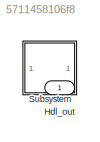
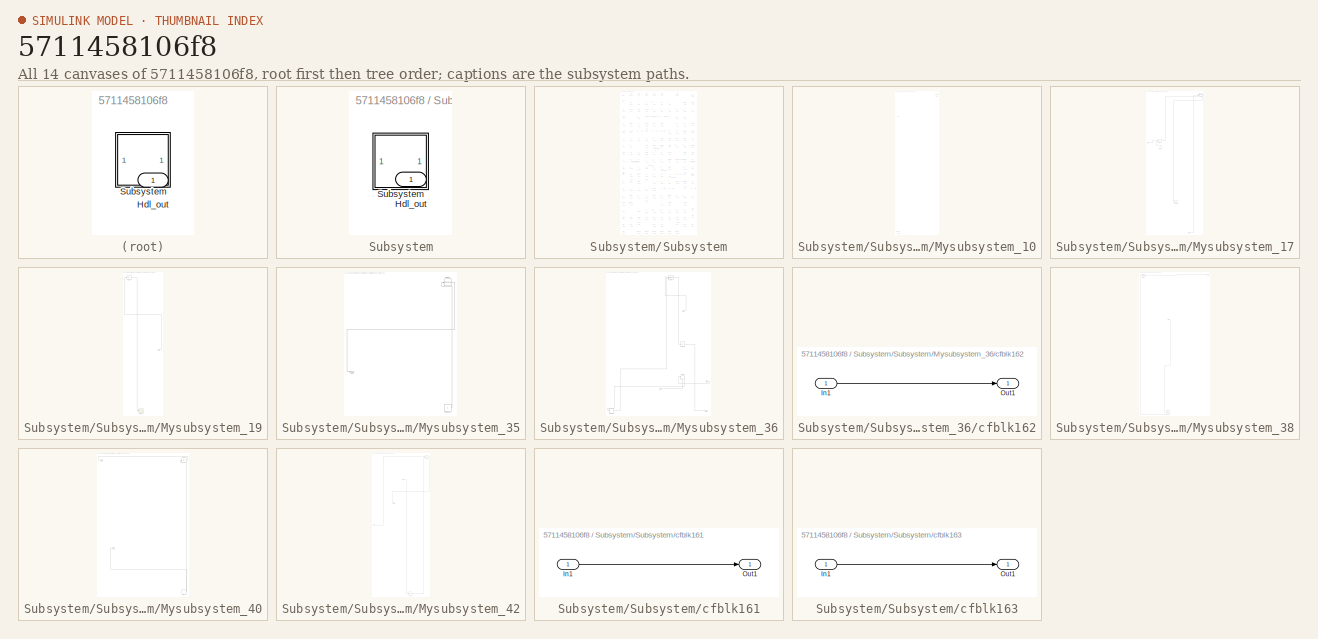
[diagram: thumbnail index - all 14 canvases of the model, root first then tree order]
MODEL slx_5711458106f8
KIND model
CONFIG AbsTol = auto
CONFIG EnableMultiTasking = off
CONFIG FixedStep = auto
CONFIG MaxStep = auto
CONFIG MinStep = auto
CONFIG RelTol = 1e-3
CONFIG SampleTimeConstraint = Unconstrained
CONFIG SolverName = VariableStepAuto
CONFIG StartTime = 0.0
CONFIG StopTime = 10.0
BLOCK [Outport] Hdl_out
  OutDataTypeStr = uint8
BLOCK [SubSystem] Subsystem
BLOCK [Outport] Subsystem/Hdl_out
  OutDataTypeStr = uint8
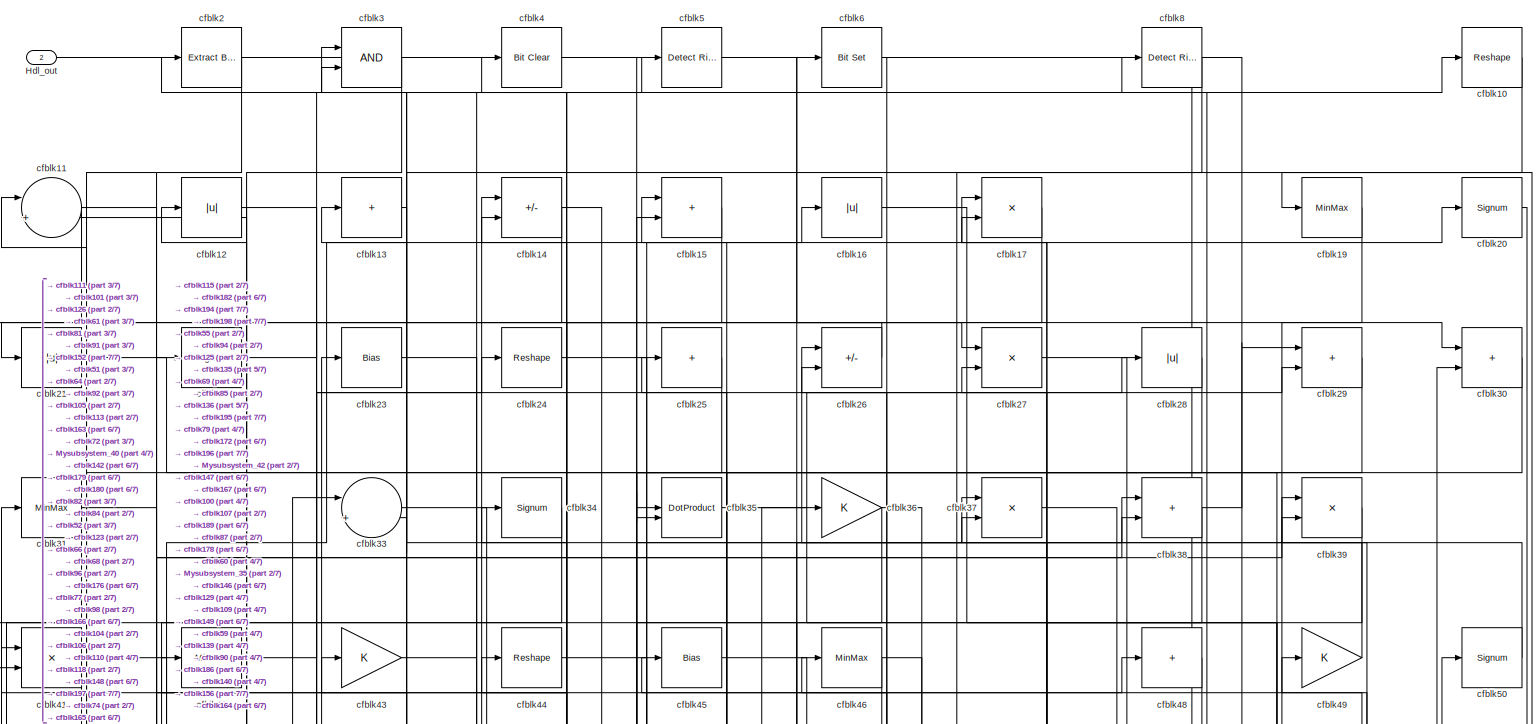
[diagram: Subsystem/Subsystem - part 1/7, full width, top band]
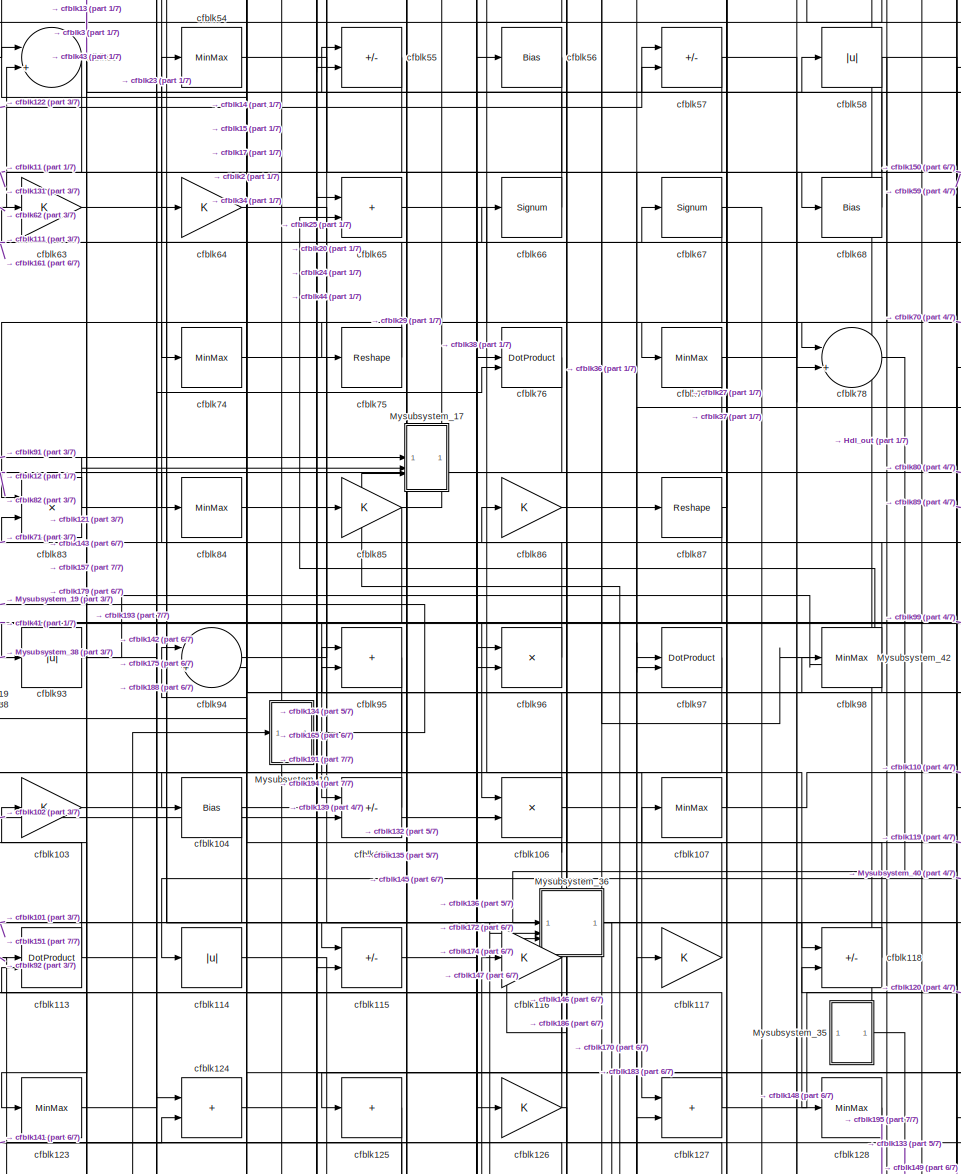
[diagram: Subsystem/Subsystem - part 2/7, central region]
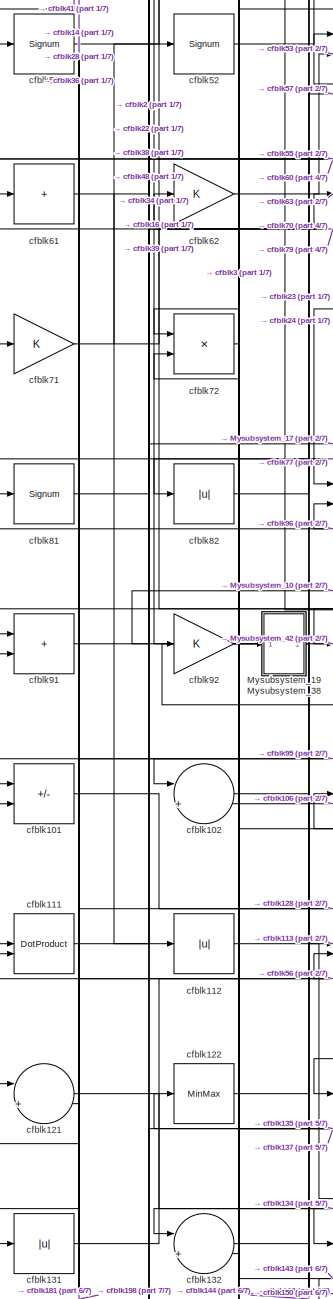
[diagram: Subsystem/Subsystem - part 3/7, middle left region]
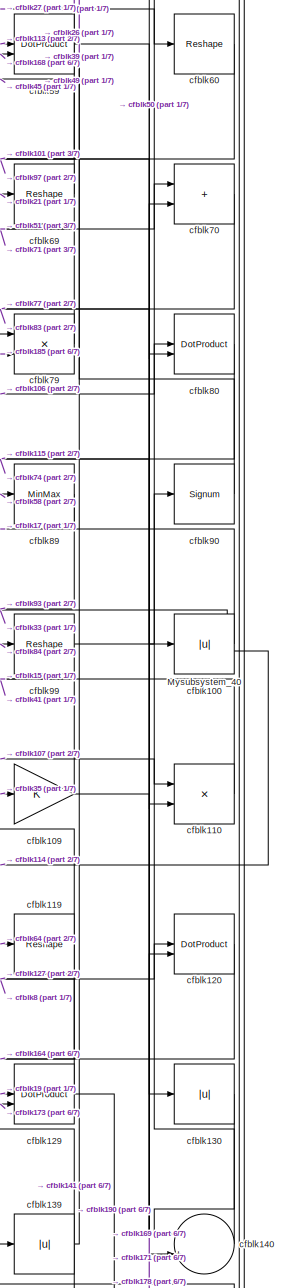
[diagram: Subsystem/Subsystem - part 4/7, middle right region]
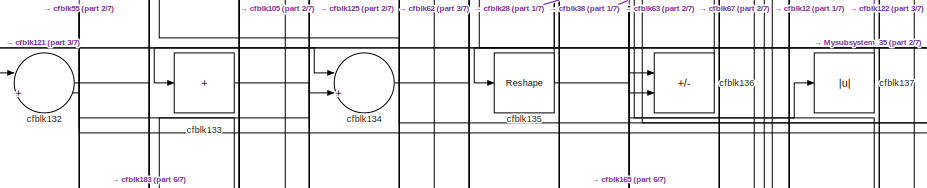
[diagram: Subsystem/Subsystem - part 5/7, bottom center region]
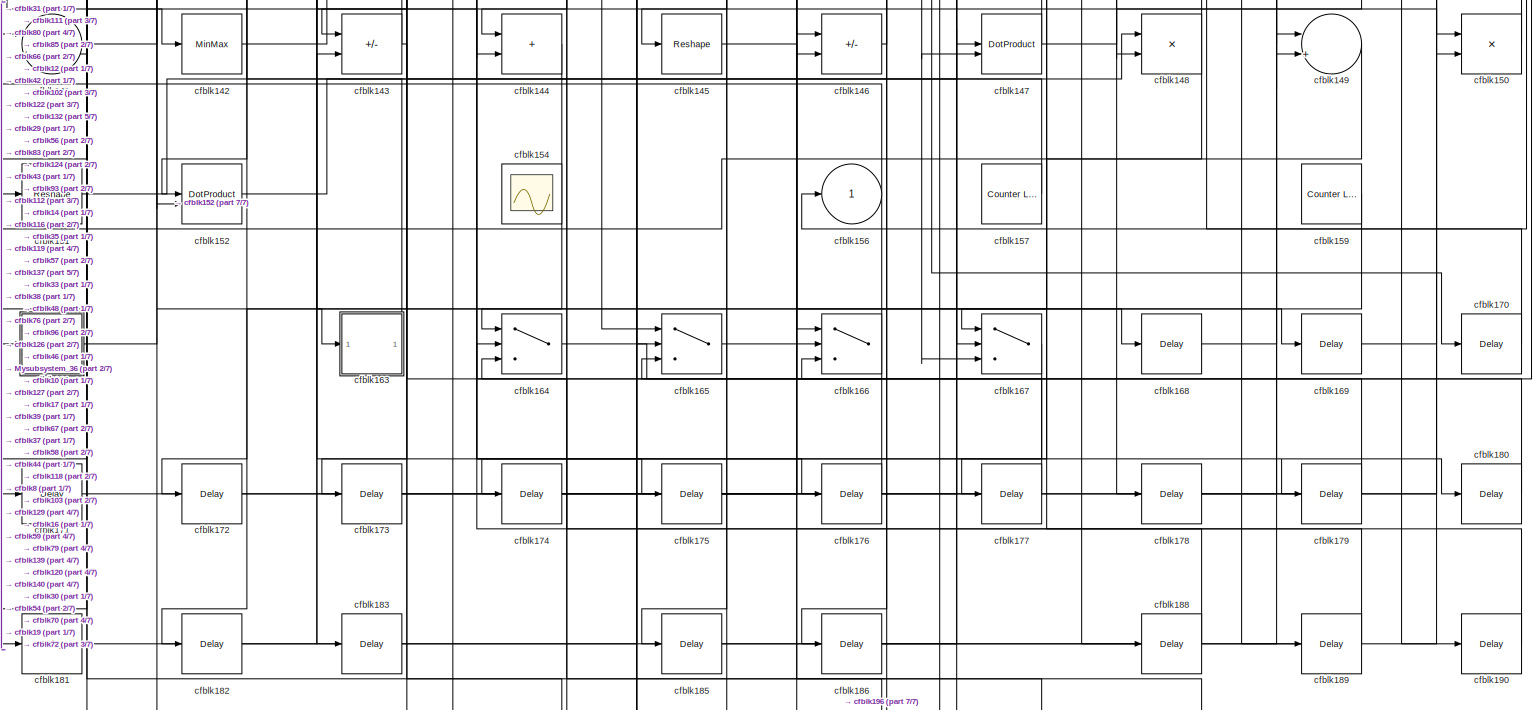
[diagram: Subsystem/Subsystem - part 6/7, full width, bottom band]
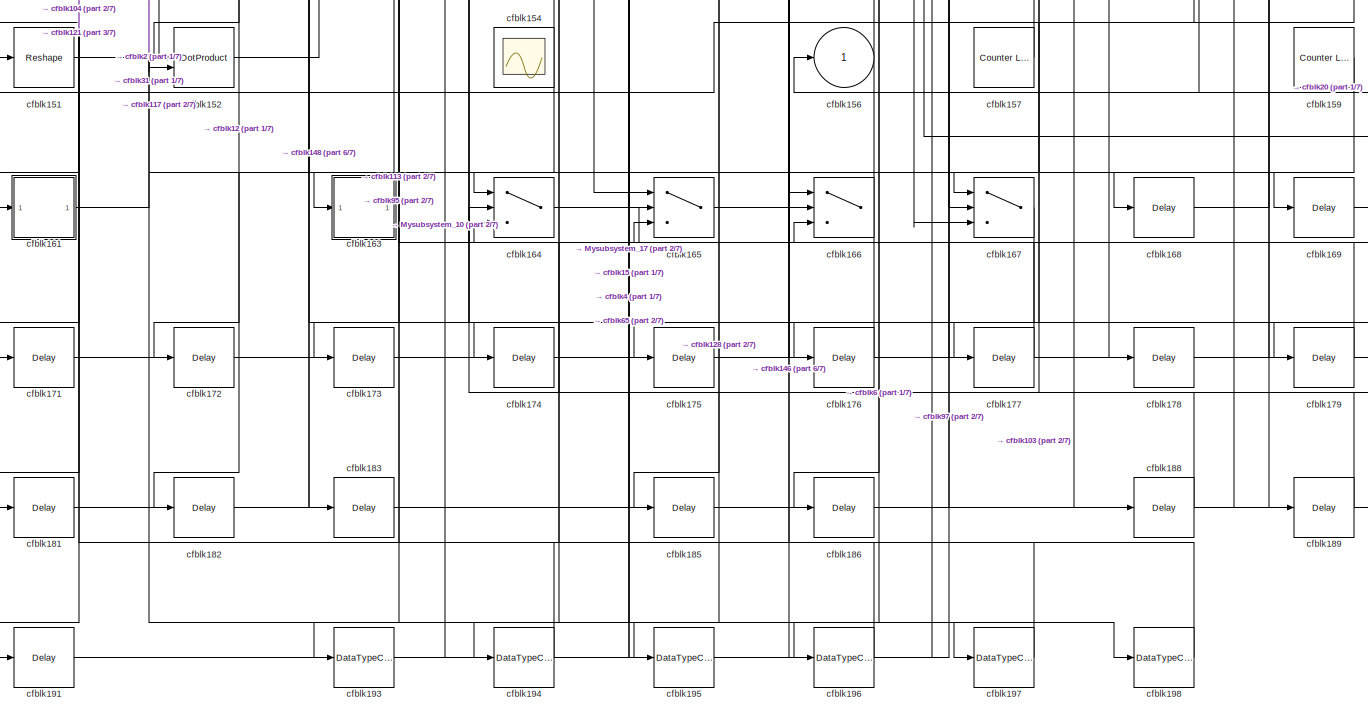
[diagram: Subsystem/Subsystem - part 7/7, full width, bottom band]
BLOCK [SubSystem] Subsystem/Subsystem
BLOCK [Outport] Subsystem/Subsystem/Hdl_out
  OutDataTypeStr = uint8
  Port = 2
BLOCK [SubSystem] Subsystem/Subsystem/Mysubsystem_10
  RTWFcnName = Mysubsystem_10
  RTWFcnNameOpts = User specified
  RTWFileNameOpts = Use function name
  RTWSystemCode = Reusable function
  TreatAsAtomicUnit = on
BLOCK [Outport] Subsystem/Subsystem/Mysubsystem_10/Out1
BLOCK [Inport] Subsystem/Subsystem/Mysubsystem_10/U
BLOCK [DataTypeConversion] Subsystem/Subsystem/Mysubsystem_10/cfblk192
  OutDataTypeStr = uint8
  RndMeth = Floor
  SaturateOnIntegerOverflow = off
BLOCK [Reference] Subsystem/Subsystem/Mysubsystem_10/cfblk7  REF=hdlsllib/Logic and Bit
Operations/Detect Rise
Positive
  SourceBlock = hdlsllib/Logic and Bit\nOperations/Detect Rise\nPositive
  SourceType = Detect Rise Positive
BLOCK [SubSystem] Subsystem/Subsystem/Mysubsystem_17
  RTWFcnName = Mysubsystem_17
  RTWFcnNameOpts = User specified
  RTWFileNameOpts = Use function name
  RTWSystemCode = Reusable function
  TreatAsAtomicUnit = on
BLOCK [Inport] Subsystem/Subsystem/Mysubsystem_17/In1
BLOCK [Inport] Subsystem/Subsystem/Mysubsystem_17/In2
  Port = 2
BLOCK [Inport] Subsystem/Subsystem/Mysubsystem_17/In3
  Port = 3
BLOCK [Display] Subsystem/Subsystem/Mysubsystem_17/cfblk155
  Decimation = 1
BLOCK [DotProduct] Subsystem/Subsystem/Mysubsystem_17/cfblk18
  OutDataTypeStr = Inherit: Inherit via internal rule
BLOCK [Sum] Subsystem/Subsystem/Mysubsystem_17/cfblk73
  IconShape = rectangular
BLOCK [SubSystem] Subsystem/Subsystem/Mysubsystem_19
  RTWFcnName = Mysubsystem_19
  RTWFcnNameOpts = User specified
  RTWFileNameOpts = Use function name
  RTWSystemCode = Reusable function
  TreatAsAtomicUnit = on
BLOCK [Inport] Subsystem/Subsystem/Mysubsystem_19/In1
BLOCK [Scope] Subsystem/Subsystem/Mysubsystem_19/cfblk153
  Floating = off
  NumInputPorts = 1
  ScopeSpecificationString = Simulink.scopes.TimeScopeBlockCfg('CurrentConfiguration', extmgr.ConfigurationSet(extmgr.Configuration('Core','General UI',true),extmgr.Configuration('Core','Source UI',true),extmgr.Configuration('Sources','WiredSimulink',true,'DataLoggingVariableName','ScopeData2','DataLoggingSaveFormat','Array','DataLoggingLimitDataPoints',true,'DataLoggingDecimation','1'),extmgr.Configuration('Visuals','Time Do...<+868ch>
BLOCK [Abs] Subsystem/Subsystem/Mysubsystem_19/cfblk32
  SaturateOnIntegerOverflow = off
BLOCK [SubSystem] Subsystem/Subsystem/Mysubsystem_35
  RTWFcnName = Mysubsystem_35
  RTWFcnNameOpts = User specified
  RTWFileNameOpts = Use function name
  RTWSystemCode = Reusable function
  TreatAsAtomicUnit = on
BLOCK [Outport] Subsystem/Subsystem/Mysubsystem_35/Out1
BLOCK [Constant] Subsystem/Subsystem/Mysubsystem_35/cfblk158
  SampleTime = -1
BLOCK [Reshape] Subsystem/Subsystem/Mysubsystem_35/cfblk88
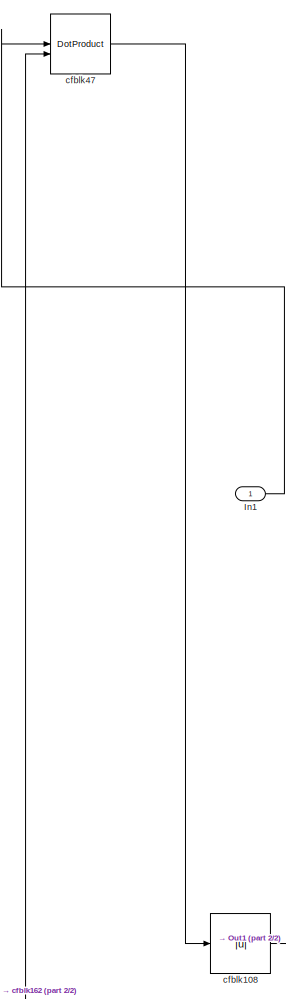
[diagram: Subsystem/Subsystem/Mysubsystem_36 - part 1/2, top center region]
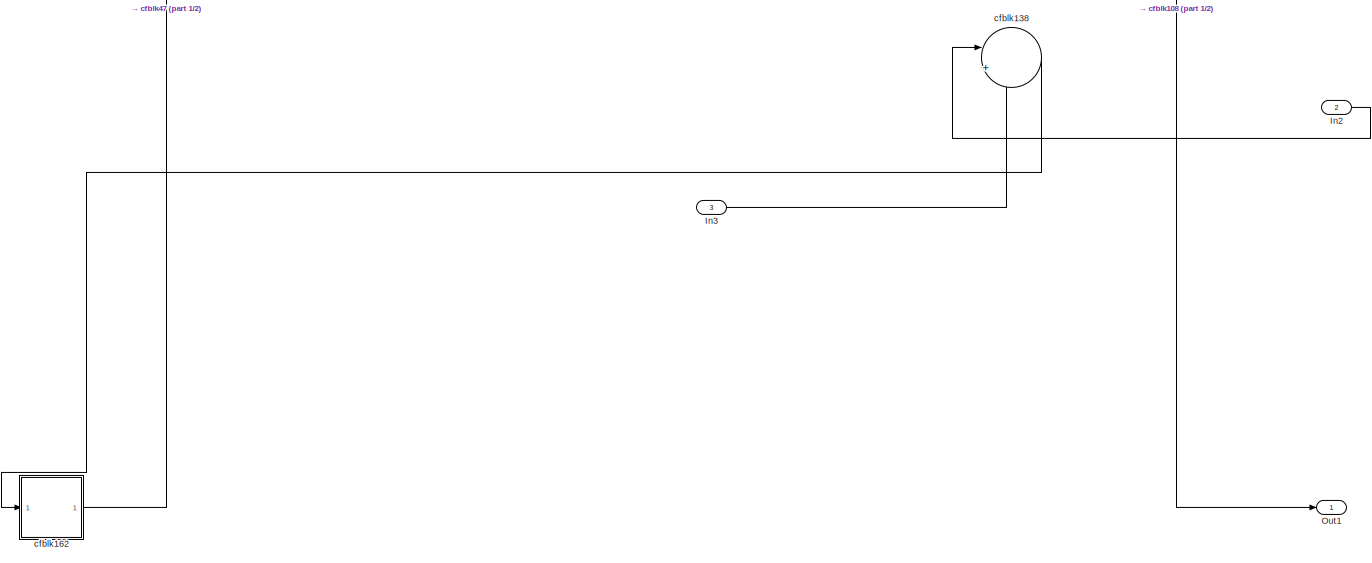
[diagram: Subsystem/Subsystem/Mysubsystem_36 - part 2/2, full width, bottom band]
BLOCK [SubSystem] Subsystem/Subsystem/Mysubsystem_36
  RTWFcnName = Mysubsystem_36
  RTWFcnNameOpts = User specified
  RTWFileNameOpts = Use function name
  RTWSystemCode = Reusable function
  TreatAsAtomicUnit = on
BLOCK [Inport] Subsystem/Subsystem/Mysubsystem_36/In1
BLOCK [Inport] Subsystem/Subsystem/Mysubsystem_36/In2
  Port = 2
BLOCK [Inport] Subsystem/Subsystem/Mysubsystem_36/In3
  Port = 3
BLOCK [Outport] Subsystem/Subsystem/Mysubsystem_36/Out1
BLOCK [Abs] Subsystem/Subsystem/Mysubsystem_36/cfblk108
  SaturateOnIntegerOverflow = off
BLOCK [Sum] Subsystem/Subsystem/Mysubsystem_36/cfblk138
  Inputs = |++
BLOCK [SubSystem] Subsystem/Subsystem/Mysubsystem_36/cfblk162
  LibrarySourceBlock = hdlsllib/Ports &\nSubsystems/Subsystem
BLOCK [Inport] Subsystem/Subsystem/Mysubsystem_36/cfblk162/In1
BLOCK [Outport] Subsystem/Subsystem/Mysubsystem_36/cfblk162/Out1
BLOCK [DotProduct] Subsystem/Subsystem/Mysubsystem_36/cfblk47
  OutDataTypeStr = Inherit: Inherit via internal rule
BLOCK [SubSystem] Subsystem/Subsystem/Mysubsystem_38
  RTWFcnName = Mysubsystem_38
  RTWFcnNameOpts = User specified
  RTWFileNameOpts = Use function name
  RTWSystemCode = Reusable function
  TreatAsAtomicUnit = on
BLOCK [Inport] Subsystem/Subsystem/Mysubsystem_38/In1
BLOCK [Outport] Subsystem/Subsystem/Mysubsystem_38/Y
BLOCK [Reference] Subsystem/Subsystem/Mysubsystem_38/cfblk1  REF=simulink/Logic and Bit
Operations/Detect
Increase
  LibrarySourceBlock = hdlsllib/Logic and Bit\nOperations/Detect\nIncrease
  SourceBlock = simulink/Logic and Bit\nOperations/Detect\nIncrease
  SourceType = Detect Increase
BLOCK [Delay] Subsystem/Subsystem/Mysubsystem_38/cfblk184
  InputPortMap = u0
  SampleTime = 1
BLOCK [SubSystem] Subsystem/Subsystem/Mysubsystem_40
  RTWFcnName = Mysubsystem_40
  RTWFcnNameOpts = User specified
  RTWFileNameOpts = Use function name
  RTWSystemCode = Reusable function
  TreatAsAtomicUnit = on
BLOCK [Outport] Subsystem/Subsystem/Mysubsystem_40/Out1
BLOCK [Outport] Subsystem/Subsystem/Mysubsystem_40/Out2
  Port = 2
BLOCK [Constant] Subsystem/Subsystem/Mysubsystem_40/cfblk160
  SampleTime = -1
BLOCK [Abs] Subsystem/Subsystem/Mysubsystem_40/cfblk40
  SaturateOnIntegerOverflow = off
BLOCK [SubSystem] Subsystem/Subsystem/Mysubsystem_42
  RTWFcnName = Mysubsystem_42
  RTWFcnNameOpts = User specified
  RTWFileNameOpts = Use function name
  RTWSystemCode = Reusable function
  TreatAsAtomicUnit = on
BLOCK [Inport] Subsystem/Subsystem/Mysubsystem_42/In1
BLOCK [Inport] Subsystem/Subsystem/Mysubsystem_42/In2
  Port = 2
BLOCK [Outport] Subsystem/Subsystem/Mysubsystem_42/Out1
BLOCK [Delay] Subsystem/Subsystem/Mysubsystem_42/cfblk187
  InputPortMap = u0
  SampleTime = 1
BLOCK [Product] Subsystem/Subsystem/Mysubsystem_42/cfblk9
  Inputs = */
  RndMeth = Zero
  SaturateOnIntegerOverflow = on
BLOCK [Reshape] Subsystem/Subsystem/cfblk10
BLOCK [Abs] Subsystem/Subsystem/cfblk100
  OutDataTypeStr = uint8
  SaturateOnIntegerOverflow = off
BLOCK [Sum] Subsystem/Subsystem/cfblk101
  IconShape = rectangular
  Inputs = +-
  OutDataTypeStr = uint8
BLOCK [Sum] Subsystem/Subsystem/cfblk102
  Inputs = |++
  OutDataTypeStr = uint8
BLOCK [Gain] Subsystem/Subsystem/cfblk103
  OutDataTypeStr = uint8
BLOCK [Bias] Subsystem/Subsystem/cfblk104
  Bias = 0.0
  SaturateOnIntegerOverflow = off
BLOCK [Sum] Subsystem/Subsystem/cfblk105
  IconShape = rectangular
  Inputs = +-
  OutDataTypeStr = uint8
BLOCK [Product] Subsystem/Subsystem/cfblk106
  Inputs = */
  OutDataTypeStr = uint8
  RndMeth = Zero
  SaturateOnIntegerOverflow = on
BLOCK [MinMax] Subsystem/Subsystem/cfblk107
  OutDataTypeStr = uint8
BLOCK [Gain] Subsystem/Subsystem/cfblk109
  OutDataTypeStr = uint8
BLOCK [Sum] Subsystem/Subsystem/cfblk11
  Inputs = |++
  OutDataTypeStr = uint8
BLOCK [Product] Subsystem/Subsystem/cfblk110
  Inputs = */
  OutDataTypeStr = uint8
  RndMeth = Zero
  SaturateOnIntegerOverflow = on
BLOCK [DotProduct] Subsystem/Subsystem/cfblk111
  OutDataTypeStr = uint8
BLOCK [Abs] Subsystem/Subsystem/cfblk112
  OutDataTypeStr = uint8
  SaturateOnIntegerOverflow = off
BLOCK [DotProduct] Subsystem/Subsystem/cfblk113
  OutDataTypeStr = uint8
BLOCK [Abs] Subsystem/Subsystem/cfblk114
  OutDataTypeStr = uint8
  SaturateOnIntegerOverflow = off
BLOCK [Sum] Subsystem/Subsystem/cfblk115
  IconShape = rectangular
  Inputs = +-
  OutDataTypeStr = uint8
BLOCK [Gain] Subsystem/Subsystem/cfblk116
  OutDataTypeStr = uint8
BLOCK [Gain] Subsystem/Subsystem/cfblk117
  OutDataTypeStr = uint8
BLOCK [Sum] Subsystem/Subsystem/cfblk118
  IconShape = rectangular
  Inputs = +-
  OutDataTypeStr = uint8
BLOCK [Reshape] Subsystem/Subsystem/cfblk119
BLOCK [Abs] Subsystem/Subsystem/cfblk12
  OutDataTypeStr = uint8
  SaturateOnIntegerOverflow = off
BLOCK [DotProduct] Subsystem/Subsystem/cfblk120
  OutDataTypeStr = uint8
BLOCK [Sum] Subsystem/Subsystem/cfblk121
  Inputs = |++
  OutDataTypeStr = uint8
BLOCK [MinMax] Subsystem/Subsystem/cfblk122
  OutDataTypeStr = uint8
BLOCK [MinMax] Subsystem/Subsystem/cfblk123
  OutDataTypeStr = uint8
BLOCK [Sum] Subsystem/Subsystem/cfblk124
  IconShape = rectangular
  OutDataTypeStr = uint8
BLOCK [Sum] Subsystem/Subsystem/cfblk125
  IconShape = rectangular
  Inputs = +
  OutDataTypeStr = uint8
BLOCK [Gain] Subsystem/Subsystem/cfblk126
  OutDataTypeStr = uint8
BLOCK [Sum] Subsystem/Subsystem/cfblk127
  IconShape = rectangular
  OutDataTypeStr = uint8
BLOCK [MinMax] Subsystem/Subsystem/cfblk128
  OutDataTypeStr = uint8
BLOCK [DotProduct] Subsystem/Subsystem/cfblk129
  OutDataTypeStr = uint8
BLOCK [Sum] Subsystem/Subsystem/cfblk13
  IconShape = rectangular
  Inputs = +
  OutDataTypeStr = uint8
BLOCK [Abs] Subsystem/Subsystem/cfblk130
  OutDataTypeStr = uint8
  SaturateOnIntegerOverflow = off
BLOCK [Abs] Subsystem/Subsystem/cfblk131
  OutDataTypeStr = uint8
  SaturateOnIntegerOverflow = off
BLOCK [Sum] Subsystem/Subsystem/cfblk132
  Inputs = |++
  OutDataTypeStr = uint8
BLOCK [Sum] Subsystem/Subsystem/cfblk133
  IconShape = rectangular
  Inputs = +
  OutDataTypeStr = uint8
BLOCK [Sum] Subsystem/Subsystem/cfblk134
  Inputs = |++
  OutDataTypeStr = uint8
BLOCK [Reshape] Subsystem/Subsystem/cfblk135
BLOCK [Sum] Subsystem/Subsystem/cfblk136
  IconShape = rectangular
  Inputs = +-
  OutDataTypeStr = uint8
BLOCK [Abs] Subsystem/Subsystem/cfblk137
  OutDataTypeStr = uint8
  SaturateOnIntegerOverflow = off
BLOCK [Abs] Subsystem/Subsystem/cfblk139
  OutDataTypeStr = uint8
  SaturateOnIntegerOverflow = off
BLOCK [Sum] Subsystem/Subsystem/cfblk14
  IconShape = rectangular
  Inputs = +-
  OutDataTypeStr = uint8
BLOCK [Sum] Subsystem/Subsystem/cfblk140
  Inputs = |++
  OutDataTypeStr = uint8
BLOCK [Sum] Subsystem/Subsystem/cfblk141
  Inputs = |++
  OutDataTypeStr = uint8
BLOCK [MinMax] Subsystem/Subsystem/cfblk142
  OutDataTypeStr = uint8
BLOCK [Sum] Subsystem/Subsystem/cfblk143
  IconShape = rectangular
  Inputs = +-
  OutDataTypeStr = uint8
BLOCK [Sum] Subsystem/Subsystem/cfblk144
  IconShape = rectangular
  OutDataTypeStr = uint8
BLOCK [Reshape] Subsystem/Subsystem/cfblk145
BLOCK [Sum] Subsystem/Subsystem/cfblk146
  IconShape = rectangular
  Inputs = +-
  OutDataTypeStr = uint8
BLOCK [DotProduct] Subsystem/Subsystem/cfblk147
  OutDataTypeStr = uint8
BLOCK [Product] Subsystem/Subsystem/cfblk148
  Inputs = */
  OutDataTypeStr = uint8
  RndMeth = Zero
  SaturateOnIntegerOverflow = on
BLOCK [Sum] Subsystem/Subsystem/cfblk149
  Inputs = |++
  OutDataTypeStr = uint8
BLOCK [Sum] Subsystem/Subsystem/cfblk15
  IconShape = rectangular
  OutDataTypeStr = uint8
BLOCK [Product] Subsystem/Subsystem/cfblk150
  Inputs = */
  OutDataTypeStr = uint8
  RndMeth = Zero
  SaturateOnIntegerOverflow = on
BLOCK [Reshape] Subsystem/Subsystem/cfblk151
BLOCK [DotProduct] Subsystem/Subsystem/cfblk152
  OutDataTypeStr = uint8
BLOCK [Scope] Subsystem/Subsystem/cfblk154
  Floating = on
  NumInputPorts = 1
  ScopeSpecificationString = Simulink.scopes.TimeScopeBlockCfg('CurrentConfiguration', extmgr.ConfigurationSet(extmgr.Configuration('Core','General UI',true,'FigureColor',[0.156862745098039 0.156862745098039 0.156862745098039]),extmgr.Configuration('Core','Source UI',true),extmgr.Configuration('Sources','WiredSimulink',true,'DataLoggingVariableName','ScopeData1','DataLoggingSaveFormat','StructureWithTime','DataLoggingLimitDat...<+2713ch>
BLOCK [Outport] Subsystem/Subsystem/cfblk156
  OutDataTypeStr = uint8
  VectorParamsAs1DForOutWhenUnconnected = off
BLOCK [Reference] Subsystem/Subsystem/cfblk157  REF=hdlsllib/Sources/Counter
Limited
  SourceBlock = hdlsllib/Sources/Counter\nLimited
  SourceType = Counter Limited
BLOCK [Reference] Subsystem/Subsystem/cfblk159  REF=hdlsllib/Sources/Counter
Limited
  SourceBlock = hdlsllib/Sources/Counter\nLimited
  SourceType = Counter Limited
BLOCK [Abs] Subsystem/Subsystem/cfblk16
  OutDataTypeStr = uint8
  SaturateOnIntegerOverflow = off
BLOCK [SubSystem] Subsystem/Subsystem/cfblk161
  LibrarySourceBlock = hdlsllib/Ports &\nSubsystems/Subsystem
BLOCK [Inport] Subsystem/Subsystem/cfblk161/In1
BLOCK [Outport] Subsystem/Subsystem/cfblk161/Out1
BLOCK [SubSystem] Subsystem/Subsystem/cfblk163
  LibrarySourceBlock = hdlsllib/Ports &\nSubsystems/Subsystem
BLOCK [Inport] Subsystem/Subsystem/cfblk163/In1
BLOCK [Outport] Subsystem/Subsystem/cfblk163/Out1
BLOCK [Switch] Subsystem/Subsystem/cfblk164
  InputSameDT = off
  OutDataTypeStr = uint8
  SaturateOnIntegerOverflow = off
BLOCK [Switch] Subsystem/Subsystem/cfblk165
  InputSameDT = off
  OutDataTypeStr = uint8
  SaturateOnIntegerOverflow = off
BLOCK [Switch] Subsystem/Subsystem/cfblk166
  InputSameDT = off
  OutDataTypeStr = uint8
  SaturateOnIntegerOverflow = off
BLOCK [Switch] Subsystem/Subsystem/cfblk167
  InputSameDT = off
  OutDataTypeStr = uint8
  SaturateOnIntegerOverflow = off
BLOCK [Delay] Subsystem/Subsystem/cfblk168
  InputPortMap = u0
  SampleTime = 1
BLOCK [Delay] Subsystem/Subsystem/cfblk169
  InputPortMap = u0
  SampleTime = 1
BLOCK [Product] Subsystem/Subsystem/cfblk17
  Inputs = */
  OutDataTypeStr = uint8
  RndMeth = Zero
  SaturateOnIntegerOverflow = on
BLOCK [Delay] Subsystem/Subsystem/cfblk170
  InputPortMap = u0
  SampleTime = 1
BLOCK [Delay] Subsystem/Subsystem/cfblk171
  InputPortMap = u0
  SampleTime = 1
BLOCK [Delay] Subsystem/Subsystem/cfblk172
  InputPortMap = u0
  SampleTime = 1
BLOCK [Delay] Subsystem/Subsystem/cfblk173
  InputPortMap = u0
  SampleTime = 1
BLOCK [Delay] Subsystem/Subsystem/cfblk174
  InputPortMap = u0
  SampleTime = 1
BLOCK [Delay] Subsystem/Subsystem/cfblk175
  InputPortMap = u0
  SampleTime = 1
BLOCK [Delay] Subsystem/Subsystem/cfblk176
  InputPortMap = u0
  SampleTime = 1
BLOCK [Delay] Subsystem/Subsystem/cfblk177
  InputPortMap = u0
  SampleTime = 1
BLOCK [Delay] Subsystem/Subsystem/cfblk178
  InputPortMap = u0
  SampleTime = 1
BLOCK [Delay] Subsystem/Subsystem/cfblk179
  InputPortMap = u0
  SampleTime = 1
BLOCK [Delay] Subsystem/Subsystem/cfblk180
  InputPortMap = u0
  SampleTime = 1
BLOCK [Delay] Subsystem/Subsystem/cfblk181
  InputPortMap = u0
  SampleTime = 1
BLOCK [Delay] Subsystem/Subsystem/cfblk182
  InputPortMap = u0
  SampleTime = 1
BLOCK [Delay] Subsystem/Subsystem/cfblk183
  InputPortMap = u0
  SampleTime = 1
BLOCK [Delay] Subsystem/Subsystem/cfblk185
  InputPortMap = u0
  SampleTime = 1
BLOCK [Delay] Subsystem/Subsystem/cfblk186
  InputPortMap = u0
  SampleTime = 1
BLOCK [Delay] Subsystem/Subsystem/cfblk188
  InputPortMap = u0
  SampleTime = 1
BLOCK [Delay] Subsystem/Subsystem/cfblk189
  InputPortMap = u0
  SampleTime = 1
BLOCK [MinMax] Subsystem/Subsystem/cfblk19
  OutDataTypeStr = uint8
BLOCK [Delay] Subsystem/Subsystem/cfblk190
  InputPortMap = u0
  SampleTime = 1
BLOCK [Delay] Subsystem/Subsystem/cfblk191
  InputPortMap = u0
  SampleTime = 1
BLOCK [DataTypeConversion] Subsystem/Subsystem/cfblk193
  OutDataTypeStr = uint8
  RndMeth = Floor
  SaturateOnIntegerOverflow = off
BLOCK [DataTypeConversion] Subsystem/Subsystem/cfblk194
  OutDataTypeStr = uint8
  RndMeth = Floor
  SaturateOnIntegerOverflow = off
BLOCK [DataTypeConversion] Subsystem/Subsystem/cfblk195
  OutDataTypeStr = uint8
  RndMeth = Floor
  SaturateOnIntegerOverflow = off
BLOCK [DataTypeConversion] Subsystem/Subsystem/cfblk196
  OutDataTypeStr = uint8
  RndMeth = Floor
  SaturateOnIntegerOverflow = off
BLOCK [DataTypeConversion] Subsystem/Subsystem/cfblk197
  OutDataTypeStr = uint8
  RndMeth = Floor
  SaturateOnIntegerOverflow = off
BLOCK [DataTypeConversion] Subsystem/Subsystem/cfblk198
  OutDataTypeStr = uint8
  RndMeth = Floor
  SaturateOnIntegerOverflow = off
BLOCK [Reference] Subsystem/Subsystem/cfblk2  REF=simulink/Logic and Bit
Operations/Extract Bits
  LibrarySourceBlock = hdlsllib/Logic and Bit\nOperations/Extract Bits
  SourceBlock = simulink/Logic and Bit\nOperations/Extract Bits
  SourceType = Extract Bits
BLOCK [Signum] Subsystem/Subsystem/cfblk20
BLOCK [Abs] Subsystem/Subsystem/cfblk21
  OutDataTypeStr = uint8
  SaturateOnIntegerOverflow = off
BLOCK [Signum] Subsystem/Subsystem/cfblk22
BLOCK [Bias] Subsystem/Subsystem/cfblk23
  Bias = 0.0
  SaturateOnIntegerOverflow = off
BLOCK [Reshape] Subsystem/Subsystem/cfblk24
BLOCK [Sum] Subsystem/Subsystem/cfblk25
  IconShape = rectangular
  Inputs = +
  OutDataTypeStr = uint8
BLOCK [Sum] Subsystem/Subsystem/cfblk26
  IconShape = rectangular
  Inputs = +-
  OutDataTypeStr = uint8
BLOCK [Product] Subsystem/Subsystem/cfblk27
  Inputs = */
  OutDataTypeStr = uint8
  RndMeth = Zero
  SaturateOnIntegerOverflow = on
BLOCK [Abs] Subsystem/Subsystem/cfblk28
  OutDataTypeStr = uint8
  SaturateOnIntegerOverflow = off
BLOCK [Sum] Subsystem/Subsystem/cfblk29
  IconShape = rectangular
  OutDataTypeStr = uint8
BLOCK [Logic] Subsystem/Subsystem/cfblk3
  AllPortsSameDT = off
  OutDataTypeStr = boolean
BLOCK [Sum] Subsystem/Subsystem/cfblk30
  IconShape = rectangular
  OutDataTypeStr = uint8
BLOCK [MinMax] Subsystem/Subsystem/cfblk31
  OutDataTypeStr = uint8
BLOCK [Sum] Subsystem/Subsystem/cfblk33
  Inputs = |++
  OutDataTypeStr = uint8
BLOCK [Signum] Subsystem/Subsystem/cfblk34
BLOCK [DotProduct] Subsystem/Subsystem/cfblk35
  OutDataTypeStr = uint8
BLOCK [Gain] Subsystem/Subsystem/cfblk36
  OutDataTypeStr = uint8
BLOCK [Product] Subsystem/Subsystem/cfblk37
  Inputs = */
  OutDataTypeStr = uint8
  RndMeth = Zero
  SaturateOnIntegerOverflow = on
BLOCK [Sum] Subsystem/Subsystem/cfblk38
  IconShape = rectangular
  OutDataTypeStr = uint8
BLOCK [Product] Subsystem/Subsystem/cfblk39
  Inputs = */
  OutDataTypeStr = uint8
  RndMeth = Zero
  SaturateOnIntegerOverflow = on
BLOCK [Reference] Subsystem/Subsystem/cfblk4  REF=simulink/Logic and Bit
Operations/Bit Clear
  LibrarySourceBlock = hdlsllib/Logic and Bit\nOperations/Bit Clear
  SourceBlock = simulink/Logic and Bit\nOperations/Bit Clear
  SourceType = Bit Clear
BLOCK [Product] Subsystem/Subsystem/cfblk41
  Inputs = */
  OutDataTypeStr = uint8
  RndMeth = Zero
  SaturateOnIntegerOverflow = on
BLOCK [MinMax] Subsystem/Subsystem/cfblk42
  OutDataTypeStr = uint8
BLOCK [Gain] Subsystem/Subsystem/cfblk43
  OutDataTypeStr = uint8
BLOCK [Reshape] Subsystem/Subsystem/cfblk44
BLOCK [Bias] Subsystem/Subsystem/cfblk45
  Bias = 0.0
  SaturateOnIntegerOverflow = off
BLOCK [MinMax] Subsystem/Subsystem/cfblk46
  OutDataTypeStr = uint8
BLOCK [Sum] Subsystem/Subsystem/cfblk48
  IconShape = rectangular
  Inputs = +
  OutDataTypeStr = uint8
BLOCK [Gain] Subsystem/Subsystem/cfblk49
  OutDataTypeStr = uint8
BLOCK [Reference] Subsystem/Subsystem/cfblk5  REF=hdlsllib/Logic and Bit
Operations/Detect Rise
Positive
  SourceBlock = hdlsllib/Logic and Bit\nOperations/Detect Rise\nPositive
  SourceType = Detect Rise Positive
BLOCK [Signum] Subsystem/Subsystem/cfblk50
BLOCK [Signum] Subsystem/Subsystem/cfblk51
BLOCK [Signum] Subsystem/Subsystem/cfblk52
BLOCK [Sum] Subsystem/Subsystem/cfblk53
  Inputs = |++
  OutDataTypeStr = uint8
BLOCK [MinMax] Subsystem/Subsystem/cfblk54
  OutDataTypeStr = uint8
BLOCK [Sum] Subsystem/Subsystem/cfblk55
  IconShape = rectangular
  Inputs = +-
  OutDataTypeStr = uint8
BLOCK [Bias] Subsystem/Subsystem/cfblk56
  Bias = 0.0
  SaturateOnIntegerOverflow = off
BLOCK [Sum] Subsystem/Subsystem/cfblk57
  IconShape = rectangular
  Inputs = +-
  OutDataTypeStr = uint8
BLOCK [Abs] Subsystem/Subsystem/cfblk58
  OutDataTypeStr = uint8
  SaturateOnIntegerOverflow = off
BLOCK [DotProduct] Subsystem/Subsystem/cfblk59
  OutDataTypeStr = uint8
BLOCK [Reference] Subsystem/Subsystem/cfblk6  REF=simulink/Logic and Bit
Operations/Bit Set
  LibrarySourceBlock = hdlsllib/Logic and Bit\nOperations/Bit Set
  SourceBlock = simulink/Logic and Bit\nOperations/Bit Set
  SourceType = Bit Set
BLOCK [Reshape] Subsystem/Subsystem/cfblk60
BLOCK [Sum] Subsystem/Subsystem/cfblk61
  IconShape = rectangular
  Inputs = +
  OutDataTypeStr = uint8
BLOCK [Gain] Subsystem/Subsystem/cfblk62
  OutDataTypeStr = uint8
BLOCK [Gain] Subsystem/Subsystem/cfblk63
  OutDataTypeStr = uint8
BLOCK [Gain] Subsystem/Subsystem/cfblk64
  OutDataTypeStr = uint8
BLOCK [Sum] Subsystem/Subsystem/cfblk65
  IconShape = rectangular
  OutDataTypeStr = uint8
BLOCK [Signum] Subsystem/Subsystem/cfblk66
BLOCK [Signum] Subsystem/Subsystem/cfblk67
BLOCK [Bias] Subsystem/Subsystem/cfblk68
  Bias = 0.0
  SaturateOnIntegerOverflow = off
BLOCK [Reshape] Subsystem/Subsystem/cfblk69
BLOCK [Sum] Subsystem/Subsystem/cfblk70
  IconShape = rectangular
  OutDataTypeStr = uint8
BLOCK [Gain] Subsystem/Subsystem/cfblk71
  OutDataTypeStr = uint8
BLOCK [Product] Subsystem/Subsystem/cfblk72
  Inputs = */
  OutDataTypeStr = uint8
  RndMeth = Zero
  SaturateOnIntegerOverflow = on
BLOCK [MinMax] Subsystem/Subsystem/cfblk74
  OutDataTypeStr = uint8
BLOCK [Reshape] Subsystem/Subsystem/cfblk75
BLOCK [DotProduct] Subsystem/Subsystem/cfblk76
  OutDataTypeStr = uint8
BLOCK [MinMax] Subsystem/Subsystem/cfblk77
  OutDataTypeStr = uint8
BLOCK [Sum] Subsystem/Subsystem/cfblk78
  Inputs = |++
  OutDataTypeStr = uint8
BLOCK [Product] Subsystem/Subsystem/cfblk79
  Inputs = */
  OutDataTypeStr = uint8
  RndMeth = Zero
  SaturateOnIntegerOverflow = on
BLOCK [Reference] Subsystem/Subsystem/cfblk8  REF=hdlsllib/Logic and Bit
Operations/Detect Rise
Nonnegative
  SourceBlock = hdlsllib/Logic and Bit\nOperations/Detect Rise\nNonnegative
  SourceType = Detect Rise Nonnegative
BLOCK [DotProduct] Subsystem/Subsystem/cfblk80
  OutDataTypeStr = uint8
BLOCK [Signum] Subsystem/Subsystem/cfblk81
BLOCK [Abs] Subsystem/Subsystem/cfblk82
  OutDataTypeStr = uint8
  SaturateOnIntegerOverflow = off
BLOCK [Product] Subsystem/Subsystem/cfblk83
  Inputs = */
  OutDataTypeStr = uint8
  RndMeth = Zero
  SaturateOnIntegerOverflow = on
BLOCK [MinMax] Subsystem/Subsystem/cfblk84
  OutDataTypeStr = uint8
BLOCK [Gain] Subsystem/Subsystem/cfblk85
  OutDataTypeStr = uint8
BLOCK [Gain] Subsystem/Subsystem/cfblk86
  OutDataTypeStr = uint8
BLOCK [Reshape] Subsystem/Subsystem/cfblk87
BLOCK [MinMax] Subsystem/Subsystem/cfblk89
  OutDataTypeStr = uint8
BLOCK [Signum] Subsystem/Subsystem/cfblk90
BLOCK [Sum] Subsystem/Subsystem/cfblk91
  IconShape = rectangular
  OutDataTypeStr = uint8
BLOCK [Gain] Subsystem/Subsystem/cfblk92
  OutDataTypeStr = uint8
BLOCK [Abs] Subsystem/Subsystem/cfblk93
  OutDataTypeStr = uint8
  SaturateOnIntegerOverflow = off
BLOCK [Sum] Subsystem/Subsystem/cfblk94
  Inputs = |++
  OutDataTypeStr = uint8
BLOCK [Sum] Subsystem/Subsystem/cfblk95
  IconShape = rectangular
  OutDataTypeStr = uint8
BLOCK [Product] Subsystem/Subsystem/cfblk96
  Inputs = */
  OutDataTypeStr = uint8
  RndMeth = Zero
  SaturateOnIntegerOverflow = on
BLOCK [DotProduct] Subsystem/Subsystem/cfblk97
  OutDataTypeStr = uint8
BLOCK [MinMax] Subsystem/Subsystem/cfblk98
  OutDataTypeStr = uint8
BLOCK [Reshape] Subsystem/Subsystem/cfblk99
LINE Subsystem/Subsystem/Mysubsystem_10/U:1 -> Subsystem/Subsystem/Mysubsystem_10/cfblk7:1
LINE Subsystem/Subsystem/Mysubsystem_10/cfblk192:1 -> Subsystem/Subsystem/Mysubsystem_10/Out1:1
LINE Subsystem/Subsystem/Mysubsystem_10/cfblk7:1 -> Subsystem/Subsystem/Mysubsystem_10/cfblk192:1
LINE Subsystem/Subsystem/Mysubsystem_10:1 -> Subsystem/Subsystem/Mysubsystem_19:1
LINE Subsystem/Subsystem/Mysubsystem_17/In1:1 -> Subsystem/Subsystem/Mysubsystem_17/cfblk73:1
LINE Subsystem/Subsystem/Mysubsystem_17/In2:1 -> Subsystem/Subsystem/Mysubsystem_17/cfblk73:2
LINE Subsystem/Subsystem/Mysubsystem_17/In3:1 -> Subsystem/Subsystem/Mysubsystem_17/cfblk18:2
LINE Subsystem/Subsystem/Mysubsystem_17/cfblk18:1 -> Subsystem/Subsystem/Mysubsystem_17/cfblk155:1
LINE Subsystem/Subsystem/Mysubsystem_17/cfblk73:1 -> Subsystem/Subsystem/Mysubsystem_17/cfblk18:1
LINE Subsystem/Subsystem/Mysubsystem_19/In1:1 -> Subsystem/Subsystem/Mysubsystem_19/cfblk32:1
LINE Subsystem/Subsystem/Mysubsystem_19/cfblk32:1 -> Subsystem/Subsystem/Mysubsystem_19/cfblk153:1
LINE Subsystem/Subsystem/Mysubsystem_35/cfblk158:1 -> Subsystem/Subsystem/Mysubsystem_35/cfblk88:1
LINE Subsystem/Subsystem/Mysubsystem_35/cfblk88:1 -> Subsystem/Subsystem/Mysubsystem_35/Out1:1
NET Subsystem/Subsystem/Mysubsystem_35:1 -> Subsystem/Subsystem/Hdl_out:1, Subsystem/Subsystem/cfblk133:1
LINE Subsystem/Subsystem/Mysubsystem_36/In1:1 -> Subsystem/Subsystem/Mysubsystem_36/cfblk47:1
LINE Subsystem/Subsystem/Mysubsystem_36/In2:1 -> Subsystem/Subsystem/Mysubsystem_36/cfblk138:1
LINE Subsystem/Subsystem/Mysubsystem_36/In3:1 -> Subsystem/Subsystem/Mysubsystem_36/cfblk138:2
LINE Subsystem/Subsystem/Mysubsystem_36/cfblk108:1 -> Subsystem/Subsystem/Mysubsystem_36/Out1:1
LINE Subsystem/Subsystem/Mysubsystem_36/cfblk138:1 -> Subsystem/Subsystem/Mysubsystem_36/cfblk162:1
LINE Subsystem/Subsystem/Mysubsystem_36/cfblk162/In1:1 -> Subsystem/Subsystem/Mysubsystem_36/cfblk162/Out1:1
LINE Subsystem/Subsystem/Mysubsystem_36/cfblk162:1 -> Subsystem/Subsystem/Mysubsystem_36/cfblk47:2
LINE Subsystem/Subsystem/Mysubsystem_36/cfblk47:1 -> Subsystem/Subsystem/Mysubsystem_36/cfblk108:1
LINE Subsystem/Subsystem/Mysubsystem_36:1 -> Subsystem/Subsystem/cfblk170:1
LINE Subsystem/Subsystem/Mysubsystem_38/In1:1 -> Subsystem/Subsystem/Mysubsystem_38/cfblk184:1
LINE Subsystem/Subsystem/Mysubsystem_38/cfblk184:1 -> Subsystem/Subsystem/Mysubsystem_38/cfblk1:1
LINE Subsystem/Subsystem/Mysubsystem_38/cfblk1:1 -> Subsystem/Subsystem/Mysubsystem_38/Y:1
LINE Subsystem/Subsystem/Mysubsystem_38:1 -> Subsystem/Subsystem/Mysubsystem_42:2
NET Subsystem/Subsystem/Mysubsystem_40/cfblk160:1 -> Subsystem/Subsystem/Mysubsystem_40/Out2:1, Subsystem/Subsystem/Mysubsystem_40/cfblk40:1
LINE Subsystem/Subsystem/Mysubsystem_40/cfblk40:1 -> Subsystem/Subsystem/Mysubsystem_40/Out1:1
LINE Subsystem/Subsystem/Mysubsystem_40:1 -> Subsystem/Subsystem/cfblk33:1
LINE Subsystem/Subsystem/Mysubsystem_40:2 -> Subsystem/Subsystem/cfblk114:1
LINE Subsystem/Subsystem/Mysubsystem_42/In1:1 -> Subsystem/Subsystem/Mysubsystem_42/cfblk187:1
LINE Subsystem/Subsystem/Mysubsystem_42/In2:1 -> Subsystem/Subsystem/Mysubsystem_42/cfblk9:1
LINE Subsystem/Subsystem/Mysubsystem_42/cfblk187:1 -> Subsystem/Subsystem/Mysubsystem_42/cfblk9:2
LINE Subsystem/Subsystem/Mysubsystem_42/cfblk9:1 -> Subsystem/Subsystem/Mysubsystem_42/Out1:1
LINE Subsystem/Subsystem/Mysubsystem_42:1 -> Subsystem/Subsystem/cfblk65:2
LINE Subsystem/Subsystem/cfblk100:1 -> Subsystem/Subsystem/cfblk17:1
LINE Subsystem/Subsystem/cfblk101:1 -> Subsystem/Subsystem/cfblk128:1
LINE Subsystem/Subsystem/cfblk102:1 -> Subsystem/Subsystem/cfblk168:1
LINE Subsystem/Subsystem/cfblk103:1 -> Subsystem/Subsystem/cfblk149:1
NET Subsystem/Subsystem/cfblk104:1 -> Subsystem/Subsystem/cfblk151:1, Subsystem/Subsystem/cfblk85:1
LINE Subsystem/Subsystem/cfblk105:1 -> Subsystem/Subsystem/cfblk53:1
NET Subsystem/Subsystem/cfblk106:1 -> Subsystem/Subsystem/cfblk102:2, Subsystem/Subsystem/cfblk2:1, Subsystem/Subsystem/cfblk80:1
NET Subsystem/Subsystem/cfblk107:1 -> Subsystem/Subsystem/cfblk110:1, Subsystem/Subsystem/cfblk27:2
NET Subsystem/Subsystem/cfblk109:1 -> Subsystem/Subsystem/cfblk130:1, Subsystem/Subsystem/cfblk15:1
LINE Subsystem/Subsystem/cfblk10:1 -> Subsystem/Subsystem/cfblk167:2
LINE Subsystem/Subsystem/cfblk110:1 -> Subsystem/Subsystem/cfblk41:1
NET Subsystem/Subsystem/cfblk111:1 -> Subsystem/Subsystem/cfblk181:1, Subsystem/Subsystem/cfblk63:1
LINE Subsystem/Subsystem/cfblk112:1 -> Subsystem/Subsystem/cfblk144:1
NET Subsystem/Subsystem/cfblk113:1 -> Subsystem/Subsystem/cfblk11:2, Subsystem/Subsystem/cfblk59:1
LINE Subsystem/Subsystem/cfblk114:1 -> Subsystem/Subsystem/cfblk139:1
LINE Subsystem/Subsystem/cfblk115:1 -> Subsystem/Subsystem/cfblk57:1
NET Subsystem/Subsystem/cfblk116:1 -> Subsystem/Subsystem/cfblk165:2, Subsystem/Subsystem/cfblk95:1
LINE Subsystem/Subsystem/cfblk117:1 -> Subsystem/Subsystem/cfblk86:1
LINE Subsystem/Subsystem/cfblk118:1 -> Subsystem/Subsystem/cfblk34:1
NET Subsystem/Subsystem/cfblk119:1 -> Subsystem/Subsystem/cfblk107:1, Subsystem/Subsystem/cfblk185:1
NET Subsystem/Subsystem/cfblk11:1 -> Subsystem/Subsystem/cfblk41:2, Subsystem/Subsystem/cfblk64:1
LINE Subsystem/Subsystem/cfblk120:1 -> Subsystem/Subsystem/cfblk164:1
LINE Subsystem/Subsystem/cfblk121:1 -> Subsystem/Subsystem/cfblk134:1
NET Subsystem/Subsystem/cfblk122:1 -> Subsystem/Subsystem/cfblk144:2, Subsystem/Subsystem/cfblk57:2
LINE Subsystem/Subsystem/cfblk123:1 -> Subsystem/Subsystem/cfblk55:1
NET Subsystem/Subsystem/cfblk124:1 -> Subsystem/Subsystem/cfblk94:1, Subsystem/Subsystem/cfblk98:1
LINE Subsystem/Subsystem/cfblk125:1 -> Subsystem/Subsystem/cfblk132:2
NET Subsystem/Subsystem/cfblk126:1 -> Subsystem/Subsystem/cfblk11:1, Subsystem/Subsystem/cfblk186:1
NET Subsystem/Subsystem/cfblk127:1 -> Subsystem/Subsystem/cfblk120:1, Subsystem/Subsystem/cfblk94:2
LINE Subsystem/Subsystem/cfblk128:1 -> Subsystem/Subsystem/cfblk195:1
NET Subsystem/Subsystem/cfblk129:1 -> Subsystem/Subsystem/cfblk190:1, Subsystem/Subsystem/cfblk8:1
NET Subsystem/Subsystem/cfblk12:1 -> Subsystem/Subsystem/cfblk152:1, Subsystem/Subsystem/cfblk179:1, Subsystem/Subsystem/cfblk180:1, Subsystem/Subsystem/cfblk84:1
LINE Subsystem/Subsystem/cfblk130:1 -> Subsystem/Subsystem/cfblk140:1
LINE Subsystem/Subsystem/cfblk131:1 -> Subsystem/Subsystem/cfblk56:1
LINE Subsystem/Subsystem/cfblk132:1 -> Subsystem/Subsystem/cfblk183:1
LINE Subsystem/Subsystem/cfblk133:1 -> Subsystem/Subsystem/cfblk134:2
LINE Subsystem/Subsystem/cfblk134:1 -> Subsystem/Subsystem/cfblk105:2
NET Subsystem/Subsystem/cfblk135:1 -> Subsystem/Subsystem/cfblk62:1, Subsystem/Subsystem/cfblk67:1
LINE Subsystem/Subsystem/cfblk136:1 -> Subsystem/Subsystem/cfblk12:1
LINE Subsystem/Subsystem/cfblk137:1 -> Subsystem/Subsystem/cfblk122:1
NET Subsystem/Subsystem/cfblk139:1 -> Subsystem/Subsystem/cfblk141:2, Subsystem/Subsystem/cfblk26:2, Subsystem/Subsystem/cfblk49:1
LINE Subsystem/Subsystem/cfblk13:1 -> Subsystem/Subsystem/cfblk123:1
LINE Subsystem/Subsystem/cfblk140:1 -> Subsystem/Subsystem/cfblk50:1
LINE Subsystem/Subsystem/cfblk141:1 -> Subsystem/Subsystem/cfblk124:2
NET Subsystem/Subsystem/cfblk142:1 -> Subsystem/Subsystem/cfblk29:2, Subsystem/Subsystem/cfblk76:2
NET Subsystem/Subsystem/cfblk143:1 -> Subsystem/Subsystem/cfblk111:1, Subsystem/Subsystem/cfblk173:1
LINE Subsystem/Subsystem/cfblk144:1 -> Subsystem/Subsystem/cfblk182:1
LINE Subsystem/Subsystem/cfblk145:1 -> Subsystem/Subsystem/cfblk169:1
NET Subsystem/Subsystem/cfblk146:1 -> Subsystem/Subsystem/Mysubsystem_36:3, Subsystem/Subsystem/cfblk46:1
NET Subsystem/Subsystem/cfblk147:1 -> Subsystem/Subsystem/cfblk116:1, Subsystem/Subsystem/cfblk150:2
NET Subsystem/Subsystem/cfblk148:1 -> Subsystem/Subsystem/cfblk177:1, Subsystem/Subsystem/cfblk44:1
LINE Subsystem/Subsystem/cfblk149:1 -> Subsystem/Subsystem/cfblk31:1
NET Subsystem/Subsystem/cfblk14:1 -> Subsystem/Subsystem/cfblk165:1, Subsystem/Subsystem/cfblk81:1
NET Subsystem/Subsystem/cfblk150:1 -> Subsystem/Subsystem/Mysubsystem_36:2, Subsystem/Subsystem/cfblk72:2
LINE Subsystem/Subsystem/cfblk151:1 -> Subsystem/Subsystem/cfblk117:1
LINE Subsystem/Subsystem/cfblk152:1 -> Subsystem/Subsystem/cfblk148:1
LINE Subsystem/Subsystem/cfblk157:1 -> Subsystem/Subsystem/cfblk103:1
LINE Subsystem/Subsystem/cfblk159:1 -> Subsystem/Subsystem/cfblk194:1
LINE Subsystem/Subsystem/cfblk15:1 -> Subsystem/Subsystem/cfblk104:1
LINE Subsystem/Subsystem/cfblk161/In1:1 -> Subsystem/Subsystem/cfblk161/Out1:1
LINE Subsystem/Subsystem/cfblk161:1 -> Subsystem/Subsystem/cfblk66:1
LINE Subsystem/Subsystem/cfblk163/In1:1 -> Subsystem/Subsystem/cfblk163/Out1:1
LINE Subsystem/Subsystem/cfblk163:1 -> Subsystem/Subsystem/cfblk42:1
LINE Subsystem/Subsystem/cfblk164:1 -> Subsystem/Subsystem/cfblk19:1
NET Subsystem/Subsystem/cfblk165:1 -> Subsystem/Subsystem/cfblk137:1, Subsystem/Subsystem/cfblk38:1
NET Subsystem/Subsystem/cfblk166:1 -> Subsystem/Subsystem/cfblk141:1, Subsystem/Subsystem/cfblk165:3
LINE Subsystem/Subsystem/cfblk167:1 -> Subsystem/Subsystem/cfblk174:1
LINE Subsystem/Subsystem/cfblk168:1 -> Subsystem/Subsystem/cfblk59:2
LINE Subsystem/Subsystem/cfblk169:1 -> Subsystem/Subsystem/cfblk140:2
LINE Subsystem/Subsystem/cfblk16:1 -> Subsystem/Subsystem/cfblk149:2
LINE Subsystem/Subsystem/cfblk170:1 -> Subsystem/Subsystem/cfblk118:2
LINE Subsystem/Subsystem/cfblk171:1 -> Subsystem/Subsystem/cfblk120:2
LINE Subsystem/Subsystem/cfblk172:1 -> Subsystem/Subsystem/cfblk76:1
LINE Subsystem/Subsystem/cfblk173:1 -> Subsystem/Subsystem/cfblk129:2
LINE Subsystem/Subsystem/cfblk174:1 -> Subsystem/Subsystem/cfblk96:1
LINE Subsystem/Subsystem/cfblk175:1 -> Subsystem/Subsystem/cfblk147:1
LINE Subsystem/Subsystem/cfblk176:1 -> Subsystem/Subsystem/cfblk164:2
LINE Subsystem/Subsystem/cfblk177:1 -> Subsystem/Subsystem/cfblk166:2
LINE Subsystem/Subsystem/cfblk178:1 -> Subsystem/Subsystem/cfblk70:2
LINE Subsystem/Subsystem/cfblk179:1 -> Subsystem/Subsystem/cfblk83:2
LINE Subsystem/Subsystem/cfblk17:1 -> Subsystem/Subsystem/cfblk74:1
LINE Subsystem/Subsystem/cfblk180:1 -> Subsystem/Subsystem/cfblk166:3
LINE Subsystem/Subsystem/cfblk181:1 -> Subsystem/Subsystem/cfblk143:2
LINE Subsystem/Subsystem/cfblk182:1 -> Subsystem/Subsystem/cfblk35:1
LINE Subsystem/Subsystem/cfblk183:1 -> Subsystem/Subsystem/cfblk127:2
LINE Subsystem/Subsystem/cfblk185:1 -> Subsystem/Subsystem/cfblk79:2
LINE Subsystem/Subsystem/cfblk186:1 -> Subsystem/Subsystem/cfblk30:2
LINE Subsystem/Subsystem/cfblk188:1 -> Subsystem/Subsystem/cfblk124:1
LINE Subsystem/Subsystem/cfblk189:1 -> Subsystem/Subsystem/cfblk17:2
LINE Subsystem/Subsystem/cfblk190:1 -> Subsystem/Subsystem/cfblk164:3
LINE Subsystem/Subsystem/cfblk191:1 -> Subsystem/Subsystem/cfblk65:1
LINE Subsystem/Subsystem/cfblk193:1 -> Subsystem/Subsystem/Mysubsystem_10:1
NET Subsystem/Subsystem/cfblk194:1 -> Subsystem/Subsystem/Mysubsystem_17:3, Subsystem/Subsystem/cfblk113:2, Subsystem/Subsystem/cfblk15:2, Subsystem/Subsystem/cfblk97:1
LINE Subsystem/Subsystem/cfblk195:1 -> Subsystem/Subsystem/cfblk6:1
LINE Subsystem/Subsystem/cfblk196:1 -> Subsystem/Subsystem/cfblk146:1
LINE Subsystem/Subsystem/cfblk197:1 -> Subsystem/Subsystem/cfblk4:1
LINE Subsystem/Subsystem/cfblk198:1 -> Subsystem/Subsystem/cfblk121:1
LINE Subsystem/Subsystem/cfblk19:1 -> Subsystem/Subsystem/cfblk129:1
LINE Subsystem/Subsystem/cfblk20:1 -> Subsystem/Subsystem/cfblk156:1
LINE Subsystem/Subsystem/cfblk21:1 -> Subsystem/Subsystem/cfblk69:1
LINE Subsystem/Subsystem/cfblk22:1 -> Subsystem/Subsystem/cfblk30:1
LINE Subsystem/Subsystem/cfblk23:1 -> Subsystem/Subsystem/cfblk77:1
LINE Subsystem/Subsystem/cfblk24:1 -> Subsystem/Subsystem/cfblk126:1
LINE Subsystem/Subsystem/cfblk25:1 -> Subsystem/Subsystem/cfblk115:2
LINE Subsystem/Subsystem/cfblk26:1 -> Subsystem/Subsystem/cfblk21:1
LINE Subsystem/Subsystem/cfblk27:1 -> Subsystem/Subsystem/cfblk60:1
NET Subsystem/Subsystem/cfblk28:1 -> Subsystem/Subsystem/cfblk135:1, Subsystem/Subsystem/cfblk91:1
LINE Subsystem/Subsystem/cfblk29:1 -> Subsystem/Subsystem/cfblk125:1
NET Subsystem/Subsystem/cfblk2:1 -> Subsystem/Subsystem/cfblk101:1, Subsystem/Subsystem/cfblk152:2
LINE Subsystem/Subsystem/cfblk30:1 -> Subsystem/Subsystem/cfblk35:2
NET Subsystem/Subsystem/cfblk31:1 -> Subsystem/Subsystem/cfblk142:1, Subsystem/Subsystem/cfblk163:1, Subsystem/Subsystem/cfblk197:1
LINE Subsystem/Subsystem/cfblk33:1 -> Subsystem/Subsystem/cfblk166:1
LINE Subsystem/Subsystem/cfblk34:1 -> Subsystem/Subsystem/cfblk92:1
NET Subsystem/Subsystem/cfblk35:1 -> Subsystem/Subsystem/cfblk109:1, Subsystem/Subsystem/cfblk28:1
NET Subsystem/Subsystem/cfblk36:1 -> Subsystem/Subsystem/Mysubsystem_42:1, Subsystem/Subsystem/cfblk61:1, Subsystem/Subsystem/cfblk91:2
LINE Subsystem/Subsystem/cfblk37:1 -> Subsystem/Subsystem/cfblk178:1
NET Subsystem/Subsystem/cfblk38:1 -> Subsystem/Subsystem/cfblk136:2, Subsystem/Subsystem/cfblk29:1, Subsystem/Subsystem/cfblk55:2
LINE Subsystem/Subsystem/cfblk39:1 -> Subsystem/Subsystem/cfblk167:1
LINE Subsystem/Subsystem/cfblk3:1 -> Subsystem/Subsystem/cfblk72:1
NET Subsystem/Subsystem/cfblk41:1 -> Subsystem/Subsystem/cfblk105:1, Subsystem/Subsystem/cfblk111:2
LINE Subsystem/Subsystem/cfblk42:1 -> Subsystem/Subsystem/cfblk5:1
NET Subsystem/Subsystem/cfblk43:1 -> Subsystem/Subsystem/cfblk10:1, Subsystem/Subsystem/cfblk176:1
LINE Subsystem/Subsystem/cfblk44:1 -> Subsystem/Subsystem/cfblk68:1
LINE Subsystem/Subsystem/cfblk45:1 -> Subsystem/Subsystem/cfblk79:1
NET Subsystem/Subsystem/cfblk46:1 -> Subsystem/Subsystem/cfblk147:2, Subsystem/Subsystem/cfblk167:3, Subsystem/Subsystem/cfblk172:1
LINE Subsystem/Subsystem/cfblk48:1 -> Subsystem/Subsystem/cfblk146:2
LINE Subsystem/Subsystem/cfblk49:1 -> Subsystem/Subsystem/cfblk3:1
LINE Subsystem/Subsystem/cfblk4:1 -> Subsystem/Subsystem/cfblk198:1
LINE Subsystem/Subsystem/cfblk50:1 -> Subsystem/Subsystem/cfblk26:1
NET Subsystem/Subsystem/cfblk51:1 -> Subsystem/Subsystem/cfblk16:1, Subsystem/Subsystem/cfblk39:2
LINE Subsystem/Subsystem/cfblk52:1 -> Subsystem/Subsystem/cfblk23:1
LINE Subsystem/Subsystem/cfblk53:1 -> Subsystem/Subsystem/cfblk131:1
LINE Subsystem/Subsystem/cfblk54:1 -> Subsystem/Subsystem/cfblk150:1
NET Subsystem/Subsystem/cfblk55:1 -> Subsystem/Subsystem/Mysubsystem_38:1, Subsystem/Subsystem/cfblk132:1
LINE Subsystem/Subsystem/cfblk56:1 -> Subsystem/Subsystem/cfblk143:1
NET Subsystem/Subsystem/cfblk57:1 -> Subsystem/Subsystem/cfblk145:1, Subsystem/Subsystem/cfblk78:2
NET Subsystem/Subsystem/cfblk58:1 -> Subsystem/Subsystem/cfblk148:2, Subsystem/Subsystem/cfblk78:1, Subsystem/Subsystem/cfblk89:1
NET Subsystem/Subsystem/cfblk59:1 -> Subsystem/Subsystem/cfblk100:1, Subsystem/Subsystem/cfblk25:1, Subsystem/Subsystem/cfblk97:2
LINE Subsystem/Subsystem/cfblk5:1 -> Subsystem/Subsystem/cfblk27:1
LINE Subsystem/Subsystem/cfblk60:1 -> Subsystem/Subsystem/cfblk101:2
NET Subsystem/Subsystem/cfblk61:1 -> Subsystem/Subsystem/cfblk112:1, Subsystem/Subsystem/cfblk38:2
LINE Subsystem/Subsystem/cfblk62:1 -> Subsystem/Subsystem/cfblk53:2
LINE Subsystem/Subsystem/cfblk63:1 -> Subsystem/Subsystem/cfblk136:1
LINE Subsystem/Subsystem/cfblk64:1 -> Subsystem/Subsystem/cfblk119:1
LINE Subsystem/Subsystem/cfblk65:1 -> Subsystem/Subsystem/cfblk118:1
LINE Subsystem/Subsystem/cfblk66:1 -> Subsystem/Subsystem/cfblk13:1
NET Subsystem/Subsystem/cfblk67:1 -> Subsystem/Subsystem/cfblk188:1, Subsystem/Subsystem/cfblk75:1
LINE Subsystem/Subsystem/cfblk68:1 -> Subsystem/Subsystem/cfblk43:1
LINE Subsystem/Subsystem/cfblk69:1 -> Subsystem/Subsystem/cfblk45:1
LINE Subsystem/Subsystem/cfblk6:1 -> Subsystem/Subsystem/cfblk196:1
LINE Subsystem/Subsystem/cfblk70:1 -> Subsystem/Subsystem/cfblk83:1
NET Subsystem/Subsystem/cfblk71:1 -> Subsystem/Subsystem/cfblk52:1, Subsystem/Subsystem/cfblk70:1
LINE Subsystem/Subsystem/cfblk72:1 -> Subsystem/Subsystem/cfblk102:1
NET Subsystem/Subsystem/cfblk74:1 -> Subsystem/Subsystem/cfblk110:2, Subsystem/Subsystem/cfblk127:1, Subsystem/Subsystem/cfblk14:2
LINE Subsystem/Subsystem/cfblk75:1 -> Subsystem/Subsystem/cfblk54:1
LINE Subsystem/Subsystem/cfblk76:1 -> Subsystem/Subsystem/cfblk96:2
NET Subsystem/Subsystem/cfblk77:1 -> Subsystem/Subsystem/cfblk80:2, Subsystem/Subsystem/cfblk82:1
LINE Subsystem/Subsystem/cfblk78:1 -> Subsystem/Subsystem/Mysubsystem_36:1
LINE Subsystem/Subsystem/cfblk79:1 -> Subsystem/Subsystem/cfblk51:1
NET Subsystem/Subsystem/cfblk80:1 -> Subsystem/Subsystem/cfblk115:1, Subsystem/Subsystem/cfblk171:1
LINE Subsystem/Subsystem/cfblk81:1 -> Subsystem/Subsystem/cfblk22:1
LINE Subsystem/Subsystem/cfblk82:1 -> Subsystem/Subsystem/cfblk24:1
NET Subsystem/Subsystem/cfblk83:1 -> Subsystem/Subsystem/Mysubsystem_17:2, Subsystem/Subsystem/cfblk106:2
NET Subsystem/Subsystem/cfblk84:1 -> Subsystem/Subsystem/cfblk37:2, Subsystem/Subsystem/cfblk58:1, Subsystem/Subsystem/cfblk99:1
NET Subsystem/Subsystem/cfblk85:1 -> Subsystem/Subsystem/cfblk161:1, Subsystem/Subsystem/cfblk36:1
LINE Subsystem/Subsystem/cfblk86:1 -> Subsystem/Subsystem/cfblk87:1
NET Subsystem/Subsystem/cfblk87:1 -> Subsystem/Subsystem/cfblk106:1, Subsystem/Subsystem/cfblk37:1
LINE Subsystem/Subsystem/cfblk89:1 -> Subsystem/Subsystem/cfblk93:1
NET Subsystem/Subsystem/cfblk8:1 -> Subsystem/Subsystem/cfblk189:1, Subsystem/Subsystem/cfblk33:2
LINE Subsystem/Subsystem/cfblk90:1 -> Subsystem/Subsystem/cfblk39:1
NET Subsystem/Subsystem/cfblk91:1 -> Subsystem/Subsystem/Mysubsystem_17:1, Subsystem/Subsystem/cfblk48:1
LINE Subsystem/Subsystem/cfblk92:1 -> Subsystem/Subsystem/cfblk113:1
LINE Subsystem/Subsystem/cfblk93:1 -> Subsystem/Subsystem/cfblk175:1
LINE Subsystem/Subsystem/cfblk94:1 -> Subsystem/Subsystem/cfblk20:1
NET Subsystem/Subsystem/cfblk95:1 -> Subsystem/Subsystem/cfblk121:2, Subsystem/Subsystem/cfblk193:1
NET Subsystem/Subsystem/cfblk96:1 -> Subsystem/Subsystem/cfblk3:2, Subsystem/Subsystem/cfblk71:1
LINE Subsystem/Subsystem/cfblk97:1 -> Subsystem/Subsystem/cfblk191:1
NET Subsystem/Subsystem/cfblk98:1 -> Subsystem/Subsystem/cfblk14:1, Subsystem/Subsystem/cfblk95:2
LINE Subsystem/Subsystem/cfblk99:1 -> Subsystem/Subsystem/cfblk90:1
note: NET lines group one-source signal fan-out (src -> all destinations, sorted); 1:1 wires keep LINE
